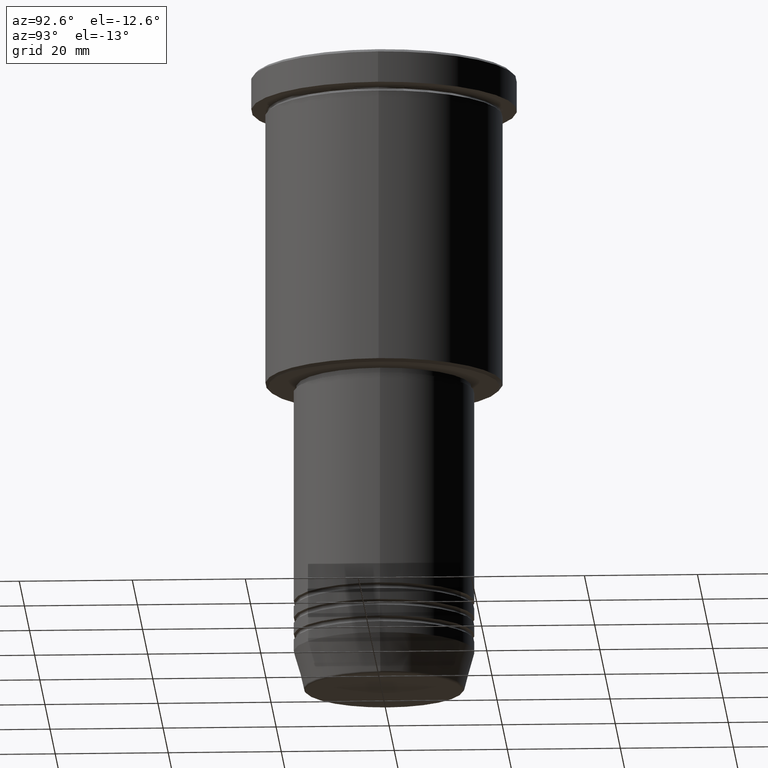
[diagram: clean part render]
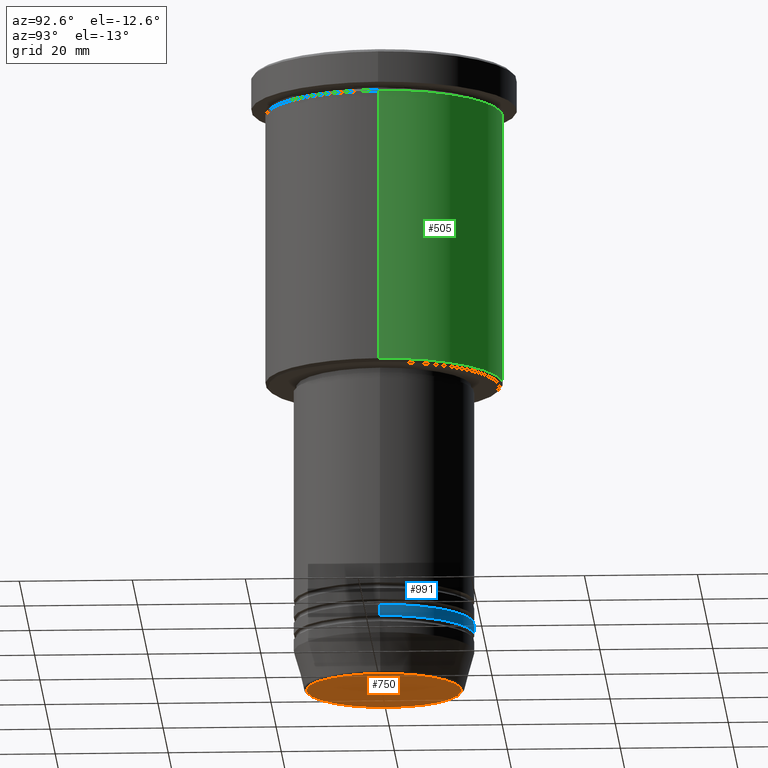
[diagram: same view with three faces highlighted in distinct colors, each labeled with its STEP entity id]
A machine part, auxiliary view with three faces highlighted in distinct colors.
Their STEP definitions:

[orange] entity #750 — the highlighted planar face has unit normal (0, -0, 1).
#69 = AXIS2_PLACEMENT_3D ( 'NONE', #624, #94, #275 ) ;
#94 = DIRECTION ( 'NONE',  ( 0.000000000000000000, 0.000000000000000000, -1.000000000000000000 ) ) ;
#107 = ORIENTED_EDGE ( 'NONE', *, *, #626, .T. ) ;
#147 = AXIS2_PLACEMENT_3D ( 'NONE', #627, #623, #541 ) ;
#158 = ORIENTED_EDGE ( 'NONE', *, *, #1177, .T. ) ;
#275 = DIRECTION ( 'NONE',  ( 1.000000000000000000, 0.000000000000000000, 0.000000000000000000 ) ) ;
#304 = CARTESIAN_POINT ( 'NONE',  ( 13.74069215899265828, 0.000000000000000000, -111.0000000000000000 ) ) ;
#307 = DIRECTION ( 'NONE',  ( 0.000000000000000000, -0.000000000000000000, 1.000000000000000000 ) ) ;
#334 = VERTEX_POINT ( 'NONE', #304 ) ;
#337 = AXIS2_PLACEMENT_3D ( 'NONE', #581, #307, #1002 ) ;
#414 = CIRCLE ( 'NONE', #69, 13.74069215899265828 ) ;
#490 = CARTESIAN_POINT ( 'NONE',  ( -13.74069215899265828, 1.712322416342415986E-15, -111.0000000000000000 ) ) ;
#511 = CIRCLE ( 'NONE', #147, 13.74069215899265828 ) ;
#541 = DIRECTION ( 'NONE',  ( 1.000000000000000000, 0.000000000000000000, 0.000000000000000000 ) ) ;
#581 = CARTESIAN_POINT ( 'NONE',  ( 0.000000000000000000, 0.000000000000000000, -111.0000000000000000 ) ) ;
#623 = DIRECTION ( 'NONE',  ( 0.000000000000000000, 0.000000000000000000, -1.000000000000000000 ) ) ;
#624 = CARTESIAN_POINT ( 'NONE',  ( 0.000000000000000000, 0.000000000000000000, -111.0000000000000000 ) ) ;
#626 = EDGE_CURVE ( 'NONE', #334, #776, #414, .T. ) ;
#627 = CARTESIAN_POINT ( 'NONE',  ( 0.000000000000000000, 0.000000000000000000, -111.0000000000000000 ) ) ;
#750 = ADVANCED_FACE ( 'NONE', ( #918 ), #1007, .F. ) ;
#761 = EDGE_LOOP ( 'NONE', ( #107, #158 ) ) ;
#776 = VERTEX_POINT ( 'NONE', #490 ) ;
#918 = FACE_OUTER_BOUND ( 'NONE', #761, .T. ) ;
#1002 = DIRECTION ( 'NONE',  ( 1.000000000000000000, 0.000000000000000000, 0.000000000000000000 ) ) ;
#1007 = PLANE ( 'NONE',  #337 ) ;
#1177 = EDGE_CURVE ( 'NONE', #776, #334, #511, .T. ) ;

[blue] entity #991 — the highlighted cylindrical surface (partial cylindrical patch) has radius 16 mm, axis along (-0, -0, 1).
#11 = VERTEX_POINT ( 'NONE', #76 ) ;
#12 = AXIS2_PLACEMENT_3D ( 'NONE', #407, #672, #501 ) ;
#17 = EDGE_CURVE ( 'NONE', #927, #477, #749, .T. ) ;
#64 = FACE_OUTER_BOUND ( 'NONE', #461, .T. ) ;
#76 = CARTESIAN_POINT ( 'NONE',  ( 16.00000000000000000, 0.000000000000000000, -98.99999999999998579 ) ) ;
#92 = DIRECTION ( 'NONE',  ( -0.000000000000000000, -0.000000000000000000, 1.000000000000000000 ) ) ;
#111 = CARTESIAN_POINT ( 'NONE',  ( 16.00000000000000000, 0.000000000000000000, 0.000000000000000000 ) ) ;
#180 = LINE ( 'NONE', #547, #992 ) ;
#225 = CIRCLE ( 'NONE', #602, 16.00000000000000000 ) ;
#226 = LINE ( 'NONE', #111, #393 ) ;
#268 = EDGE_CURVE ( 'NONE', #477, #1065, #180, .T. ) ;
#303 = DIRECTION ( 'NONE',  ( -0.000000000000000000, -0.000000000000000000, 1.000000000000000000 ) ) ;
#319 = EDGE_CURVE ( 'NONE', #927, #11, #226, .T. ) ;
#369 = AXIS2_PLACEMENT_3D ( 'NONE', #870, #787, #522 ) ;
#377 = ORIENTED_EDGE ( 'NONE', *, *, #895, .F. ) ;
#393 = VECTOR ( 'NONE', #564, 1000.000000000000000 ) ;
#402 = ORIENTED_EDGE ( 'NONE', *, *, #17, .T. ) ;
#407 = CARTESIAN_POINT ( 'NONE',  ( 0.000000000000000000, 0.000000000000000000, 0.000000000000000000 ) ) ;
#461 = EDGE_LOOP ( 'NONE', ( #402, #739, #377, #667 ) ) ;
#477 = VERTEX_POINT ( 'NONE', #786 ) ;
#501 = DIRECTION ( 'NONE',  ( 1.000000000000000000, 0.000000000000000000, 0.000000000000000000 ) ) ;
#522 = DIRECTION ( 'NONE',  ( 1.000000000000000000, 0.000000000000000000, 0.000000000000000000 ) ) ;
#547 = CARTESIAN_POINT ( 'NONE',  ( -16.00000000000000000, 1.959434878635765131E-15, 0.000000000000000000 ) ) ;
#564 = DIRECTION ( 'NONE',  ( -0.000000000000000000, -0.000000000000000000, 1.000000000000000000 ) ) ;
#602 = AXIS2_PLACEMENT_3D ( 'NONE', #1114, #303, #937 ) ;
#667 = ORIENTED_EDGE ( 'NONE', *, *, #319, .F. ) ;
#672 = DIRECTION ( 'NONE',  ( -0.000000000000000000, -0.000000000000000000, 1.000000000000000000 ) ) ;
#739 = ORIENTED_EDGE ( 'NONE', *, *, #268, .T. ) ;
#749 = CIRCLE ( 'NONE', #369, 16.00000000000000000 ) ;
#786 = CARTESIAN_POINT ( 'NONE',  ( -16.00000000000000000, 1.959434878635765131E-15, -100.9999999999999716 ) ) ;
#787 = DIRECTION ( 'NONE',  ( -0.000000000000000000, -0.000000000000000000, 1.000000000000000000 ) ) ;
#870 = CARTESIAN_POINT ( 'NONE',  ( 0.000000000000000000, 0.000000000000000000, -100.9999999999999716 ) ) ;
#891 = CARTESIAN_POINT ( 'NONE',  ( -16.00000000000000000, 1.959434878635765131E-15, -98.99999999999998579 ) ) ;
#895 = EDGE_CURVE ( 'NONE', #11, #1065, #225, .T. ) ;
#927 = VERTEX_POINT ( 'NONE', #943 ) ;
#937 = DIRECTION ( 'NONE',  ( 1.000000000000000000, 0.000000000000000000, 0.000000000000000000 ) ) ;
#943 = CARTESIAN_POINT ( 'NONE',  ( 16.00000000000000000, 0.000000000000000000, -100.9999999999999716 ) ) ;
#963 = CYLINDRICAL_SURFACE ( 'NONE', #12, 16.00000000000000000 ) ;
#991 = ADVANCED_FACE ( 'NONE', ( #64 ), #963, .T. ) ;
#992 = VECTOR ( 'NONE', #92, 1000.000000000000000 ) ;
#1065 = VERTEX_POINT ( 'NONE', #891 ) ;
#1114 = CARTESIAN_POINT ( 'NONE',  ( 0.000000000000000000, 0.000000000000000000, -98.99999999999998579 ) ) ;

[green] entity #505 — the highlighted cylindrical surface (partial cylindrical patch) has radius 21 mm, axis along (-0, -0, 1).
#57 = CARTESIAN_POINT ( 'NONE',  ( 21.00000000000000000, 0.000000000000000000, -6.999999999999994671 ) ) ;
#61 = FACE_OUTER_BOUND ( 'NONE', #409, .T. ) ;
#71 = AXIS2_PLACEMENT_3D ( 'NONE', #240, #953, #1053 ) ;
#78 = CARTESIAN_POINT ( 'NONE',  ( -21.00000000000000000, 2.571758278209441661E-15, -55.50000000000002132 ) ) ;
#122 = EDGE_CURVE ( 'NONE', #1162, #1041, #1159, .T. ) ;
#132 = DIRECTION ( 'NONE',  ( 1.000000000000000000, 0.000000000000000000, 0.000000000000000000 ) ) ;
#156 = EDGE_CURVE ( 'NONE', #488, #1041, #504, .T. ) ;
#161 = AXIS2_PLACEMENT_3D ( 'NONE', #194, #450, #370 ) ;
#182 = VECTOR ( 'NONE', #556, 1000.000000000000000 ) ;
#192 = LINE ( 'NONE', #668, #182 ) ;
#194 = CARTESIAN_POINT ( 'NONE',  ( 0.000000000000000000, 0.000000000000000000, -6.999999999999994671 ) ) ;
#234 = DIRECTION ( 'NONE',  ( -0.000000000000000000, -0.000000000000000000, 1.000000000000000000 ) ) ;
#237 = CYLINDRICAL_SURFACE ( 'NONE', #825, 21.00000000000000000 ) ;
#240 = CARTESIAN_POINT ( 'NONE',  ( 0.000000000000000000, 0.000000000000000000, -55.50000000000002132 ) ) ;
#243 = CARTESIAN_POINT ( 'NONE',  ( 0.000000000000000000, 0.000000000000000000, 0.000000000000000000 ) ) ;
#244 = CIRCLE ( 'NONE', #71, 21.00000000000000000 ) ;
#338 = CARTESIAN_POINT ( 'NONE',  ( 21.00000000000000000, 0.000000000000000000, -55.50000000000002132 ) ) ;
#370 = DIRECTION ( 'NONE',  ( 1.000000000000000000, 0.000000000000000000, 0.000000000000000000 ) ) ;
#409 = EDGE_LOOP ( 'NONE', ( #910, #1052, #942, #766 ) ) ;
#450 = DIRECTION ( 'NONE',  ( -0.000000000000000000, -0.000000000000000000, 1.000000000000000000 ) ) ;
#474 = VERTEX_POINT ( 'NONE', #338 ) ;
#488 = VERTEX_POINT ( 'NONE', #57 ) ;
#503 = CARTESIAN_POINT ( 'NONE',  ( -21.00000000000000000, 2.571758278209441661E-15, 0.000000000000000000 ) ) ;
#504 = CIRCLE ( 'NONE', #161, 21.00000000000000000 ) ;
#505 = ADVANCED_FACE ( 'NONE', ( #61 ), #237, .T. ) ;
#556 = DIRECTION ( 'NONE',  ( -0.000000000000000000, -0.000000000000000000, 1.000000000000000000 ) ) ;
#668 = CARTESIAN_POINT ( 'NONE',  ( 21.00000000000000000, 0.000000000000000000, 0.000000000000000000 ) ) ;
#766 = ORIENTED_EDGE ( 'NONE', *, *, #803, .F. ) ;
#771 = VECTOR ( 'NONE', #234, 1000.000000000000000 ) ;
#803 = EDGE_CURVE ( 'NONE', #474, #488, #192, .T. ) ;
#825 = AXIS2_PLACEMENT_3D ( 'NONE', #243, #1132, #132 ) ;
#856 = CARTESIAN_POINT ( 'NONE',  ( -21.00000000000000000, 2.571758278209441661E-15, -6.999999999999994671 ) ) ;
#910 = ORIENTED_EDGE ( 'NONE', *, *, #958, .T. ) ;
#942 = ORIENTED_EDGE ( 'NONE', *, *, #156, .F. ) ;
#953 = DIRECTION ( 'NONE',  ( -0.000000000000000000, -0.000000000000000000, 1.000000000000000000 ) ) ;
#958 = EDGE_CURVE ( 'NONE', #474, #1162, #244, .T. ) ;
#1041 = VERTEX_POINT ( 'NONE', #856 ) ;
#1052 = ORIENTED_EDGE ( 'NONE', *, *, #122, .T. ) ;
#1053 = DIRECTION ( 'NONE',  ( -1.000000000000000000, 0.000000000000000000, 0.000000000000000000 ) ) ;
#1132 = DIRECTION ( 'NONE',  ( -0.000000000000000000, -0.000000000000000000, 1.000000000000000000 ) ) ;
#1159 = LINE ( 'NONE', #503, #771 ) ;
#1162 = VERTEX_POINT ( 'NONE', #78 ) ;